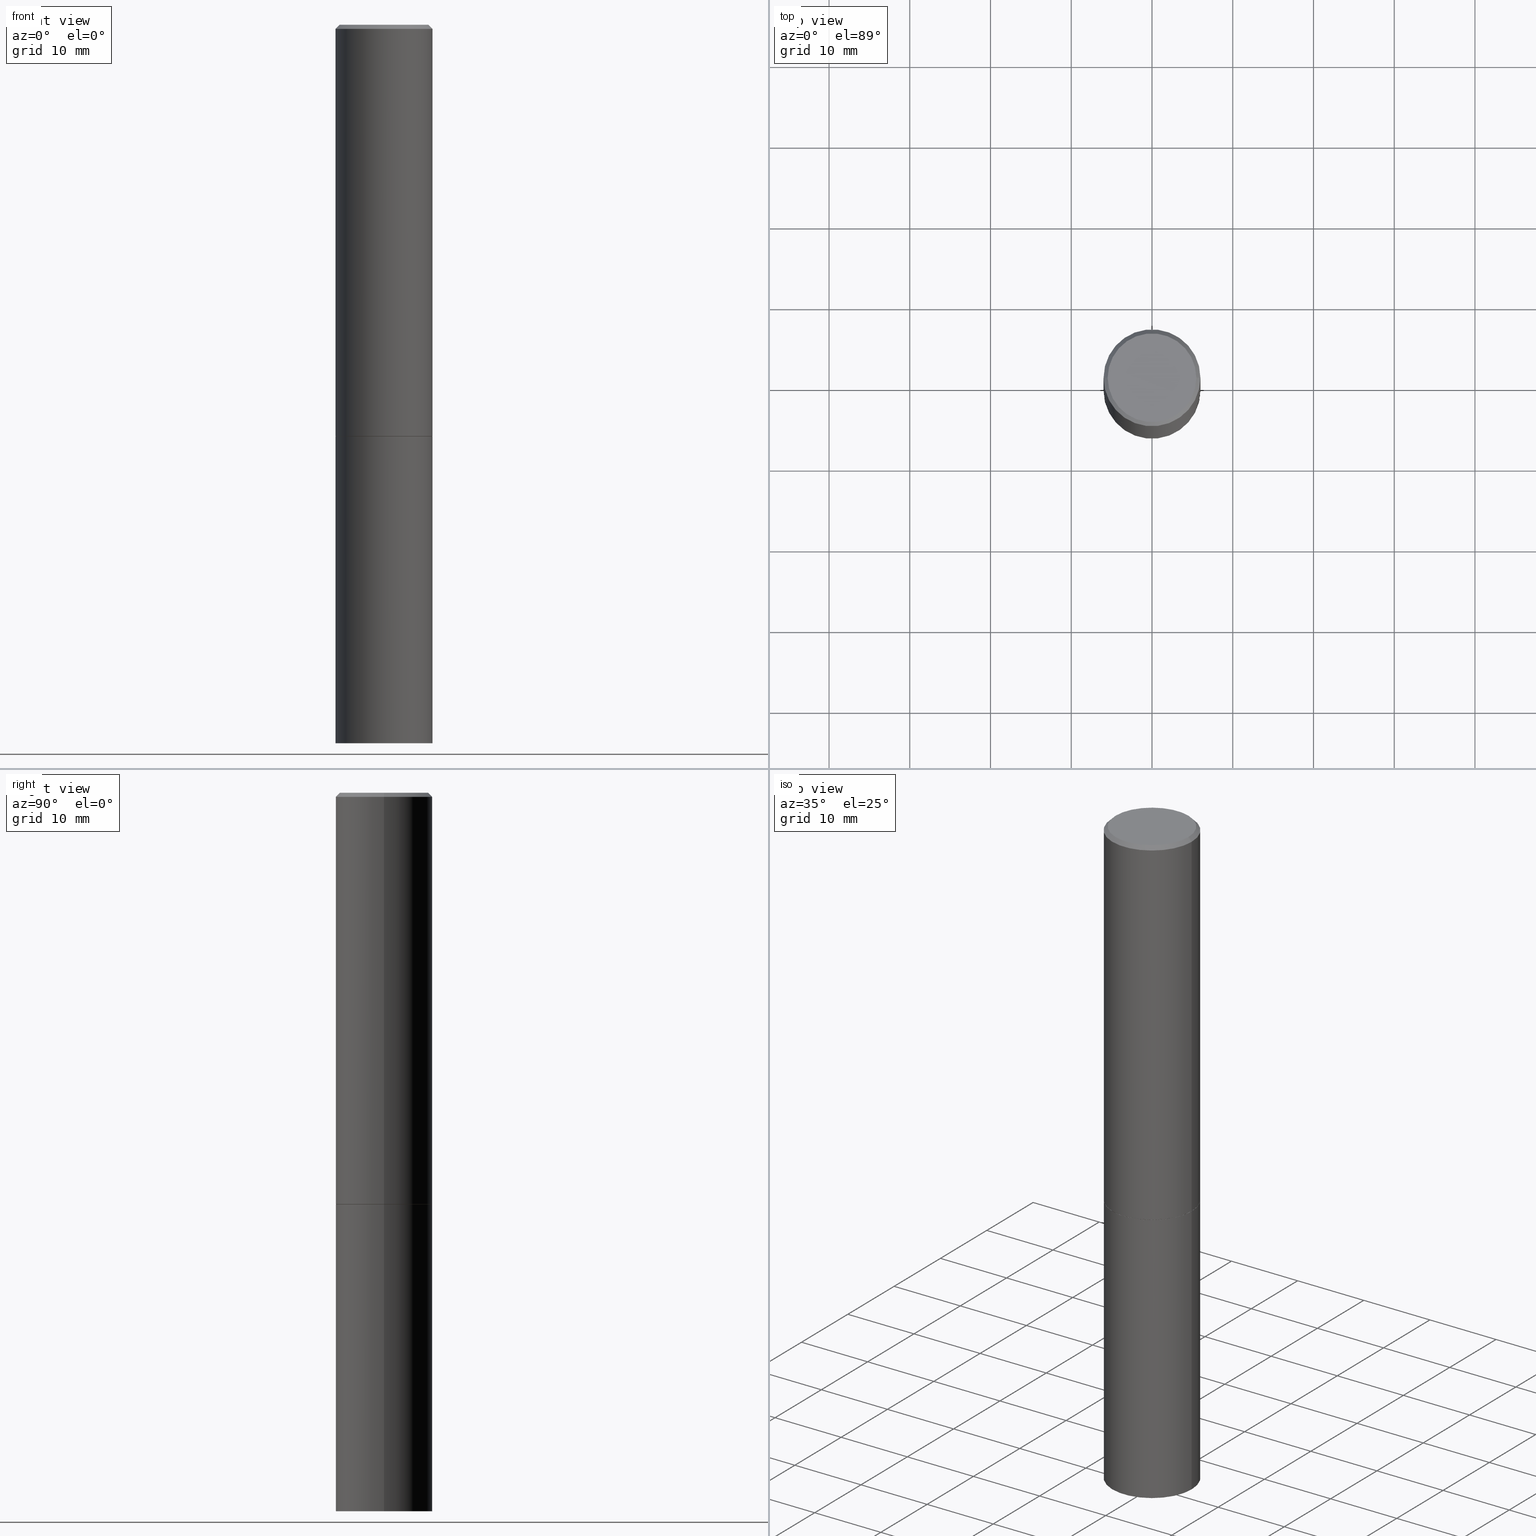
[diagram: canonical four-view strip — front | top / right | iso, engineering-drawing reading convention]
A machine part, canonical four-view strip (front | top / right | iso — engineering-drawing reading convention). The complete STEP part file that produces these views, byte-faithful:
ISO-10303-21;
HEADER;
FILE_DESCRIPTION (( 'STEP AP203' ),
    '1' );
FILE_NAME ('82997.STEP',
    '2024-02-29T21:42:59',
    ( '' ),
    ( '' ),
    'SwSTEP 2.0',
    'SolidWorks 2023',
    '' );
FILE_SCHEMA (( 'CONFIG_CONTROL_DESIGN' ));
ENDSEC;

DATA;
#1 = COORDINATED_UNIVERSAL_TIME_OFFSET ( 5, 0, .BEHIND. ) ;
#2 = CARTESIAN_POINT ( 'NONE',  ( 0.000000000000000000, 0.000000000000000000, 0.000000000000000000 ) ) ;
#3 = PERSON_AND_ORGANIZATION ( #317, #302 ) ;
#4 = CIRCLE ( 'NONE', #346, 0.2361999999999999933 ) ;
#5 = DIRECTION ( 'NONE',  ( -2.445468806185136597E-29, 3.491481338843145583E-15, 1.000000000000000000 ) ) ;
#6 = EDGE_CURVE ( 'NONE', #106, #245, #282, .T. ) ;
#7 = CIRCLE ( 'NONE', #290, 0.2361999999999997157 ) ;
#8 = APPROVAL_PERSON_ORGANIZATION ( #307, #184, #109 ) ;
#9 = DIRECTION ( 'NONE',  ( -2.445468806185136597E-29, 3.491481338843145583E-15, 1.000000000000000000 ) ) ;
#10 = DIRECTION ( 'NONE',  ( 1.000000000000000000, -6.982962677686264344E-15, 0.000000000000000000 ) ) ;
#11 = EDGE_CURVE ( 'NONE', #101, #330, #345, .T. ) ;
#12 = CARTESIAN_POINT ( 'NONE',  ( 4.890937612370280165E-31, -6.982962677686301470E-17, -0.02000000000000003164 ) ) ;
#13 = VECTOR ( 'NONE', #207, 39.37007874015748143 ) ;
#14 = DIRECTION ( 'NONE',  ( -2.445468806185136597E-29, 3.491481338843145583E-15, 1.000000000000000000 ) ) ;
#15 = CARTESIAN_POINT ( 'NONE',  ( -0.2361999999999997157, 1.579546157692631255E-15, -0.02000000000000003164 ) ) ;
#16 = DIRECTION ( 'NONE',  ( -2.445468806185136597E-29, 3.491481338843145583E-15, 1.000000000000000000 ) ) ;
#17 = ORIENTED_EDGE ( 'NONE', *, *, #146, .F. ) ;
#18 = CONICAL_SURFACE ( 'NONE', #26, 0.2351999999999999924, 0.7853981633974141952 ) ;
#19 = LOCAL_TIME ( 16, 42, 59.00000000000000000, #1 ) ;
#20 = CARTESIAN_POINT ( 'NONE',  ( 1.509716530915768746E-15, 0.2161999999999997257, -7.527240092128370190E-16 ) ) ;
#21 = ORIENTED_EDGE ( 'NONE', *, *, #316, .F. ) ;
#22 = EDGE_CURVE ( 'NONE', #101, #336, #319, .T. ) ;
#23 = ORIENTED_EDGE ( 'NONE', *, *, #156, .F. ) ;
#24 = ORIENTED_EDGE ( 'NONE', *, *, #262, .F. ) ;
#25 = COORDINATED_UNIVERSAL_TIME_OFFSET ( 5, 0, .BEHIND. ) ;
#26 = AXIS2_PLACEMENT_3D ( 'NONE', #151, #267, #98 ) ;
#27 = ORIENTED_EDGE ( 'NONE', *, *, #97, .T. ) ;
#28 = CALENDAR_DATE ( 2024, 29, 2 ) ;
#29 = DIRECTION ( 'NONE',  ( 1.000000000000000000, -6.982962677686265133E-15, 0.000000000000000000 ) ) ;
#30 = ADVANCED_FACE ( 'NONE', ( #315 ), #58, .T. ) ;
#31 = COORDINATED_UNIVERSAL_TIME_OFFSET ( 5, 0, .BEHIND. ) ;
#32 = CARTESIAN_POINT ( 'NONE',  ( 0.2351999999999999924, -8.652589053921076343E-15, -2.007800000000000029 ) ) ;
#33 = AXIS2_PLACEMENT_3D ( 'NONE', #341, #256, #10 ) ;
#34 = PRODUCT_DEFINITION ( 'UNKNOWN', '', #95, #347 ) ;
#35 = PRODUCT_DEFINITION_SHAPE ( 'NONE', 'NONE',  #34 ) ;
#36 = CARTESIAN_POINT ( 'NONE',  ( 4.907566800252331482E-29, -7.006704750790423614E-15, -2.006799999999999695 ) ) ;
#37 = CIRCLE ( 'NONE', #57, 0.2361999999999999933 ) ;
#38 = DIRECTION ( 'NONE',  ( 1.000000000000000000, -6.982962677686265922E-15, 4.876176775795935793E-29 ) ) ;
#39 = DIRECTION ( 'NONE',  ( -2.445468806185136597E-29, 3.491481338843145583E-15, 1.000000000000000000 ) ) ;
#40 = DIRECTION ( 'NONE',  ( -1.000000000000000000, 6.982962677686266711E-15, 0.000000000000000000 ) ) ;
#41 = AXIS2_PLACEMENT_3D ( 'NONE', #154, #160, #351 ) ;
#42 = DIRECTION ( 'NONE',  ( -2.445468806185136597E-29, 3.491481338843145583E-15, 1.000000000000000000 ) ) ;
#43 = CC_DESIGN_PERSON_AND_ORGANIZATION_ASSIGNMENT ( #251, #172, ( #230 ) ) ;
#44 = DIRECTION ( 'NONE',  ( 2.438088387897960049E-29, -3.491481338843145188E-15, -1.000000000000000000 ) ) ;
#45 = ORIENTED_EDGE ( 'NONE', *, *, #118, .F. ) ;
#46 = CARTESIAN_POINT ( 'NONE',  ( 0.000000000000000000, 0.000000000000000000, 0.000000000000000000 ) ) ;
#47 = EDGE_LOOP ( 'NONE', ( #155, #247, #139, #110 ) ) ;
#48 = LOCAL_TIME ( 16, 42, 59.00000000000000000, #25 ) ;
#49 = AXIS2_PLACEMENT_3D ( 'NONE', #324, #42, #125 ) ;
#50 = FACE_OUTER_BOUND ( 'NONE', #47, .T. ) ;
#51 = ORIENTED_EDGE ( 'NONE', *, *, #241, .F. ) ;
#52 = EDGE_CURVE ( 'NONE', #306, #165, #37, .T. ) ;
#53 = ORIENTED_EDGE ( 'NONE', *, *, #204, .F. ) ;
#54 = APPLICATION_PROTOCOL_DEFINITION ( 'international standard', 'config_control_design', 1994, #287 ) ;
#55 = ORIENTED_EDGE ( 'NONE', *, *, #52, .T. ) ;
#56 = APPROVAL_STATUS ( 'not_yet_approved' ) ;
#57 = AXIS2_PLACEMENT_3D ( 'NONE', #123, #236, #224 ) ;
#58 = CYLINDRICAL_SURFACE ( 'NONE', #232, 0.2361999999999998545 ) ;
#59 = PERSON_AND_ORGANIZATION ( #317, #302 ) ;
#60 = DIRECTION ( 'NONE',  ( 2.438088387897960049E-29, -3.491481338843145188E-15, -1.000000000000000000 ) ) ;
#61 = CC_DESIGN_DATE_AND_TIME_ASSIGNMENT ( #196, #365, ( #34 ) ) ;
#62 = AXIS2_PLACEMENT_3D ( 'NONE', #181, #100, #297 ) ;
#63 = DIRECTION ( 'NONE',  ( 1.000000000000000000, -6.982962677686267499E-15, 4.876217060660161841E-29 ) ) ;
#64 = CARTESIAN_POINT ( 'NONE',  ( -1.043851414335219820E-46, 1.490343170380447200E-32, 4.268512490100411279E-18 ) ) ;
#65 = VECTOR ( 'NONE', #343, 39.37007874015748854 ) ;
#66 = DATE_AND_TIME ( #263, #128 ) ;
#67 = DIRECTION ( 'NONE',  ( -2.438088387897960049E-29, 3.491481338843145188E-15, 1.000000000000000000 ) ) ;
#68 = DIRECTION ( 'NONE',  ( 1.000000000000000000, -6.982962677686266711E-15, 0.000000000000000000 ) ) ;
#69 = ADVANCED_FACE ( 'NONE', ( #85 ), #280, .T. ) ;
#70 = LINE ( 'NONE', #271, #334 ) ;
#71 = AXIS2_PLACEMENT_3D ( 'NONE', #116, #349, #179 ) ;
#72 = CYLINDRICAL_SURFACE ( 'NONE', #168, 0.2361999999999998545 ) ;
#73 = EDGE_LOOP ( 'NONE', ( #55, #217 ) ) ;
#74 = CARTESIAN_POINT ( 'NONE',  ( 0.2361999999999997157, -1.690279253850496996E-15, -0.02000000000000003164 ) ) ;
#75 = ORIENTED_EDGE ( 'NONE', *, *, #22, .T. ) ;
#76 = DIRECTION ( 'NONE',  ( -2.445468806185136597E-29, 3.491481338843145583E-15, 1.000000000000000000 ) ) ;
#77 = ORIENTED_EDGE ( 'NONE', *, *, #262, .T. ) ;
#78 = ADVANCED_FACE ( 'NONE', ( #348 ), #169, .F. ) ;
#79 = CIRCLE ( 'NONE', #310, 0.2161999999999997257 ) ;
#80 = APPROVAL_ROLE ( '' ) ;
#81 = ORIENTED_EDGE ( 'NONE', *, *, #146, .T. ) ;
#82 = ORIENTED_EDGE ( 'NONE', *, *, #11, .T. ) ;
#83 = DATE_AND_TIME ( #162, #134 ) ;
#84 = ADVANCED_FACE ( 'NONE', ( #265 ), #285, .T. ) ;
#85 = FACE_OUTER_BOUND ( 'NONE', #327, .T. ) ;
#86 = PERSON_AND_ORGANIZATION_ROLE ( 'design_supplier' ) ;
#87 = CARTESIAN_POINT ( 'NONE',  ( -0.2361999999999999933, -7.943696905785525451E-15, -2.007800000000000029 ) ) ;
#88 = PERSON_AND_ORGANIZATION ( #317, #302 ) ;
#89 = DIRECTION ( 'NONE',  ( -2.445468806185136597E-29, 3.491481338843145583E-15, 1.000000000000000000 ) ) ;
#90 = EDGE_CURVE ( 'NONE', #192, #165, #148, .T. ) ;
#91 = CONICAL_SURFACE ( 'NONE', #140, 0.2361999999999997157, 0.7853981633974472798 ) ;
#92 = EDGE_CURVE ( 'NONE', #245, #101, #313, .T. ) ;
#93 = CARTESIAN_POINT ( 'NONE',  ( 4.910012269058516525E-29, -7.010196232129267410E-15, -2.007800000000000029 ) ) ;
#94 = DIRECTION ( 'NONE',  ( 1.000000000000000000, -6.982962677686265133E-15, 0.000000000000000000 ) ) ;
#95 = PRODUCT_DEFINITION_FORMATION_WITH_SPECIFIED_SOURCE ( 'ANY', '', #230, .NOT_KNOWN. ) ;
#96 = CARTESIAN_POINT ( 'NONE',  ( 0.2361999999999999933, -8.659572016598763935E-15, -2.007800000000000029 ) ) ;
#97 = EDGE_CURVE ( 'NONE', #364, #192, #342, .T. ) ;
#98 = DIRECTION ( 'NONE',  ( 1.000000000000000000, -6.982962677686264344E-15, 0.000000000000000000 ) ) ;
#99 = CARTESIAN_POINT ( 'NONE',  ( 0.000000000000000000, 0.000000000000000000, 0.000000000000000000 ) ) ;
#100 = DIRECTION ( 'NONE',  ( 2.438088387897960049E-29, -3.491481338843145188E-15, -1.000000000000000000 ) ) ;
#101 = VERTEX_POINT ( 'NONE', #261 ) ;
#102 = LINE ( 'NONE', #268, #259 ) ;
#103 = EDGE_CURVE ( 'NONE', #185, #299, #159, .T. ) ;
#104 = ORIENTED_EDGE ( 'NONE', *, *, #316, .T. ) ;
#105 = CARTESIAN_POINT ( 'NONE',  ( 0.000000000000000000, 0.000000000000000000, 0.000000000000000000 ) ) ;
#106 = VERTEX_POINT ( 'NONE', #283 ) ;
#107 = AXIS2_PLACEMENT_3D ( 'NONE', #20, #44, #243 ) ;
#108 = ORIENTED_EDGE ( 'NONE', *, *, #121, .T. ) ;
#109 = APPROVAL_ROLE ( '' ) ;
#110 = ORIENTED_EDGE ( 'NONE', *, *, #92, .F. ) ;
#111 = PERSON_AND_ORGANIZATION ( #317, #302 ) ;
#112 = DIRECTION ( 'NONE',  ( -1.000000000000000000, 6.982962677686266711E-15, 0.000000000000000000 ) ) ;
#113 = CLOSED_SHELL ( 'NONE', ( #258, #208, #69, #355, #30, #191, #163, #308 ) ) ;
#114 = DATE_AND_TIME ( #144, #335 ) ;
#115 = AXIS2_PLACEMENT_3D ( 'NONE', #201, #60, #145 ) ;
#116 = CARTESIAN_POINT ( 'NONE',  ( 0.000000000000000000, 0.000000000000000000, 0.000000000000000000 ) ) ;
#117 = MANIFOLD_SOLID_BREP ( 'Body-Move/Copy2[2]', #113 ) ;
#118 = EDGE_CURVE ( 'NONE', #330, #167, #7, .T. ) ;
#119 = MANIFOLD_SOLID_BREP ( 'Body-Move/Copy2[1]', #231 ) ;
#120 = VECTOR ( 'NONE', #211, 39.37007874015748143 ) ;
#121 = EDGE_CURVE ( 'NONE', #364, #306, #288, .T. ) ;
#122 = COORDINATED_UNIVERSAL_TIME_OFFSET ( 5, 0, .BEHIND. ) ;
#123 = CARTESIAN_POINT ( 'NONE',  ( 4.910012269058516525E-29, -7.010196232129267410E-15, -2.007800000000000029 ) ) ;
#124 = DIRECTION ( 'NONE',  ( 1.000000000000000000, -6.982962677686266711E-15, 4.876176775795935793E-29 ) ) ;
#125 = DIRECTION ( 'NONE',  ( 1.000000000000000000, -6.982962677686269077E-15, 0.000000000000000000 ) ) ;
#126 = CC_DESIGN_PERSON_AND_ORGANIZATION_ASSIGNMENT ( #3, #360, ( #34 ) ) ;
#127 = CIRCLE ( 'NONE', #350, 0.2361999999999997157 ) ;
#128 = LOCAL_TIME ( 16, 42, 59.00000000000000000, #122 ) ;
#129 = CARTESIAN_POINT ( 'NONE',  ( -0.2361999999999998545, 1.678301941865355605E-15, -1.161852468318208056E-29 ) ) ;
#130 = CARTESIAN_POINT ( 'NONE',  ( -0.2362000000000000210, -1.859965246918283512E-15, -2.006799999999999695 ) ) ;
#131 = PLANE ( 'NONE',  #107 ) ;
#132 = EDGE_LOOP ( 'NONE', ( #161, #53 ) ) ;
#133 = CIRCLE ( 'NONE', #49, 0.2361999999999999933 ) ;
#134 = LOCAL_TIME ( 16, 42, 59.00000000000000000, #221 ) ;
#135 = DIRECTION ( 'NONE',  ( 1.000000000000000000, -6.982962677686266711E-15, 4.876176775795936353E-29 ) ) ;
#136 = ORIENTED_EDGE ( 'NONE', *, *, #92, .T. ) ;
#137 = PERSON_AND_ORGANIZATION ( #317, #302 ) ;
#138 = ORIENTED_EDGE ( 'NONE', *, *, #90, .F. ) ;
#139 = ORIENTED_EDGE ( 'NONE', *, *, #22, .F. ) ;
#140 = AXIS2_PLACEMENT_3D ( 'NONE', #358, #215, #40 ) ;
#141 =( CONVERSION_BASED_UNIT ( 'INCH', #340 ) LENGTH_UNIT ( ) NAMED_UNIT ( #164 ) );
#142 = EDGE_LOOP ( 'NONE', ( #220, #362, #104, #77 ) ) ;
#143 = CARTESIAN_POINT ( 'NONE',  ( -0.2361999999999997157, 1.579546157692631255E-15, -0.02000000000000003164 ) ) ;
#144 = CALENDAR_DATE ( 2024, 29, 2 ) ;
#145 = DIRECTION ( 'NONE',  ( -1.000000000000000000, 6.982962677686265922E-15, -4.876176775795935793E-29 ) ) ;
#146 = EDGE_CURVE ( 'NONE', #336, #101, #4, .T. ) ;
#147 = AXIS2_PLACEMENT_3D ( 'NONE', #321, #67, #38 ) ;
#148 = LINE ( 'NONE', #266, #296 ) ;
#149 = DIRECTION ( 'NONE',  ( 1.000000000000000000, -6.982962677686265133E-15, 0.000000000000000000 ) ) ;
#150 = CARTESIAN_POINT ( 'NONE',  ( 0.2361999999999999933, -1.649375784469496131E-15, 1.151752954443000088E-29 ) ) ;
#151 = CARTESIAN_POINT ( 'NONE',  ( 4.910012269058516525E-29, -7.010196232129267410E-15, -2.007800000000000029 ) ) ;
#152 = AXIS2_PLACEMENT_3D ( 'NONE', #176, #89, #94 ) ;
#153 = FACE_OUTER_BOUND ( 'NONE', #339, .T. ) ;
#154 = CARTESIAN_POINT ( 'NONE',  ( 4.910012269058516525E-29, -7.010196232129267410E-15, -2.007800000000000029 ) ) ;
#155 = ORIENTED_EDGE ( 'NONE', *, *, #156, .T. ) ;
#156 = EDGE_CURVE ( 'NONE', #245, #106, #206, .T. ) ;
#157 = DIRECTION ( 'NONE',  ( -2.445468806185136597E-29, 3.491481338843145583E-15, 1.000000000000000000 ) ) ;
#158 = EDGE_LOOP ( 'NONE', ( #27, #273, #216, #359 ) ) ;
#159 = CIRCLE ( 'NONE', #244, 0.2161999999999997257 ) ;
#160 = DIRECTION ( 'NONE',  ( -2.445468806185136597E-29, 3.491481338843145583E-15, 1.000000000000000000 ) ) ;
#161 = ORIENTED_EDGE ( 'NONE', *, *, #97, .F. ) ;
#162 = CALENDAR_DATE ( 2024, 29, 2 ) ;
#163 = ADVANCED_FACE ( 'NONE', ( #292 ), #171, .F. ) ;
#164 = DIMENSIONAL_EXPONENTS ( 1.000000000000000000, 0.000000000000000000, 0.000000000000000000, 0.000000000000000000, 0.000000000000000000, 0.000000000000000000, 0.000000000000000000 ) ;
#165 = VERTEX_POINT ( 'NONE', #87 ) ;
#166 =( LENGTH_UNIT ( ) NAMED_UNIT ( * ) SI_UNIT ( $, .METRE. ) );
#167 = VERTEX_POINT ( 'NONE', #143 ) ;
#168 = AXIS2_PLACEMENT_3D ( 'NONE', #99, #331, #188 ) ;
#169 = PLANE ( 'NONE',  #115 ) ;
#170 = DATE_AND_TIME ( #28, #48 ) ;
#171 = PLANE ( 'NONE',  #147 ) ;
#172 = PERSON_AND_ORGANIZATION_ROLE ( 'design_owner' ) ;
#173 = AXIS2_PLACEMENT_3D ( 'NONE', #242, #16, #354 ) ;
#174 = SECURITY_CLASSIFICATION ( '', '', #199 ) ;
#175 = CC_DESIGN_PERSON_AND_ORGANIZATION_ASSIGNMENT ( #59, #284, ( #174 ) ) ;
#176 = CARTESIAN_POINT ( 'NONE',  ( 8.568678149992099474E-29, -1.223380146317249786E-14, -3.503899999999999793 ) ) ;
#177 = DIRECTION ( 'NONE',  ( 1.000000000000000000, -6.982962677686264344E-15, 0.000000000000000000 ) ) ;
#178 = CC_DESIGN_APPROVAL ( #322, ( #34 ) ) ;
#179 = DIRECTION ( 'NONE',  ( 1.000000000000000000, -6.982962677686266711E-15, 4.876176775795936353E-29 ) ) ;
#180 = EDGE_CURVE ( 'NONE', #165, #306, #133, .T. ) ;
#181 = CARTESIAN_POINT ( 'NONE',  ( 1.649375784469581525E-15, 0.2361999999999877808, -3.503900000000000681 ) ) ;
#182 = DIRECTION ( 'NONE',  ( -0.7071067811865467956, 2.468850131082249172E-15, -0.7071067811865482389 ) ) ;
#183 = CARTESIAN_POINT ( 'NONE',  ( 4.890937612370280165E-31, -6.982962677686301470E-17, -0.02000000000000003164 ) ) ;
#184 = APPROVAL ( #344, 'UNSPECIFIED' ) ;
#185 = VERTEX_POINT ( 'NONE', #269 ) ;
#186 = FACE_OUTER_BOUND ( 'NONE', #158, .T. ) ;
#187 = ORIENTED_EDGE ( 'NONE', *, *, #6, .F. ) ;
#188 = DIRECTION ( 'NONE',  ( 1.000000000000000000, -6.982962677686266711E-15, 4.876176775795935793E-29 ) ) ;
#189 = EDGE_LOOP ( 'NONE', ( #250, #281 ) ) ;
#190 = AXIS2_PLACEMENT_3D ( 'NONE', #311, #5, #149 ) ;
#191 = ADVANCED_FACE ( 'NONE', ( #153 ), #18, .T. ) ;
#192 = VERTEX_POINT ( 'NONE', #209 ) ;
#193 = APPLICATION_CONTEXT ( 'configuration controlled 3d designs of mechanical parts and assemblies' ) ;
#194 = MECHANICAL_CONTEXT ( 'NONE', #287, 'mechanical' ) ;
#195 = ORIENTED_EDGE ( 'NONE', *, *, #6, .T. ) ;
#196 = DATE_AND_TIME ( #338, #19 ) ;
#197 = DIRECTION ( 'NONE',  ( -2.445468806185136597E-29, 3.491481338843145583E-15, 1.000000000000000000 ) ) ;
#198 = CC_DESIGN_SECURITY_CLASSIFICATION ( #174, ( #95 ) ) ;
#199 = SECURITY_CLASSIFICATION_LEVEL ( 'unclassified' ) ;
#200 = EDGE_CURVE ( 'NONE', #336, #167, #213, .T. ) ;
#201 = CARTESIAN_POINT ( 'NONE',  ( 1.649375784469545040E-15, 0.2361999999999929989, -2.007800000000000473 ) ) ;
#202 = PERSON_AND_ORGANIZATION ( #317, #302 ) ;
#203 = DIRECTION ( 'NONE',  ( 1.000000000000000000, -6.982962677686266711E-15, 0.000000000000000000 ) ) ;
#204 = EDGE_CURVE ( 'NONE', #192, #364, #225, .T. ) ;
#205 = DIRECTION ( 'NONE',  ( -2.445468806185136597E-29, 3.491481338843145583E-15, 1.000000000000000000 ) ) ;
#206 = CIRCLE ( 'NONE', #212, 0.2351999999999999924 ) ;
#207 = DIRECTION ( 'NONE',  ( -2.445468806185136877E-29, 3.491481338843145188E-15, 1.000000000000000000 ) ) ;
#208 = ADVANCED_FACE ( 'NONE', ( #246 ), #72, .T. ) ;
#209 = CARTESIAN_POINT ( 'NONE',  ( -0.2361999999999999933, -7.943696905785525451E-15, -3.503899999999999793 ) ) ;
#210 = FACE_OUTER_BOUND ( 'NONE', #132, .T. ) ;
#211 = DIRECTION ( 'NONE',  ( -2.445468806185136877E-29, 3.491481338843145188E-15, 1.000000000000000000 ) ) ;
#212 = AXIS2_PLACEMENT_3D ( 'NONE', #93, #205, #177 ) ;
#213 = LINE ( 'NONE', #129, #120 ) ;
#214 = ORIENTED_EDGE ( 'NONE', *, *, #11, .F. ) ;
#215 = DIRECTION ( 'NONE',  ( 2.445468806185136597E-29, -3.491481338843145583E-15, -1.000000000000000000 ) ) ;
#216 = ORIENTED_EDGE ( 'NONE', *, *, #52, .F. ) ;
#217 = ORIENTED_EDGE ( 'NONE', *, *, #180, .T. ) ;
#218 = VECTOR ( 'NONE', #182, 39.37007874015748143 ) ;
#219 = APPROVAL_ROLE ( '' ) ;
#220 = ORIENTED_EDGE ( 'NONE', *, *, #279, .F. ) ;
#221 = COORDINATED_UNIVERSAL_TIME_OFFSET ( 5, 0, .BEHIND. ) ;
#222 = CARTESIAN_POINT ( 'NONE',  ( 4.890937612370280165E-31, -6.982962677686301470E-17, -0.02000000000000003164 ) ) ;
#223 =( NAMED_UNIT ( * ) SI_UNIT ( $, .STERADIAN. ) SOLID_ANGLE_UNIT ( ) );
#224 = DIRECTION ( 'NONE',  ( 1.000000000000000000, -6.982962677686269077E-15, 0.000000000000000000 ) ) ;
#225 = CIRCLE ( 'NONE', #173, 0.2361999999999999933 ) ;
#226 = DATE_TIME_ROLE ( 'classification_date' ) ;
#227 = DIRECTION ( 'NONE',  ( -2.445468806185136877E-29, 3.491481338843145188E-15, 1.000000000000000000 ) ) ;
#228 = PRODUCT_RELATED_PRODUCT_CATEGORY ( 'detail', '', ( #230 ) ) ;
#229 = APPROVAL_DATE_TIME ( #66, #294 ) ;
#230 = PRODUCT ( '82997', '82997', '', ( #194 ) ) ;
#231 = CLOSED_SHELL ( 'NONE', ( #352, #329, #78, #84 ) ) ;
#232 = AXIS2_PLACEMENT_3D ( 'NONE', #2, #9, #124 ) ;
#233 = SHAPE_DEFINITION_REPRESENTATION ( #35, #235 ) ;
#234 = CARTESIAN_POINT ( 'NONE',  ( 0.2361999999999998545, -1.649375784469495145E-15, 1.151752954442999387E-29 ) ) ;
#235 = ADVANCED_BREP_SHAPE_REPRESENTATION ( '82997', ( #119, #117, #239 ), #237 ) ;
#236 = DIRECTION ( 'NONE',  ( -2.445468806185136597E-29, 3.491481338843145583E-15, 1.000000000000000000 ) ) ;
#237 =( GEOMETRIC_REPRESENTATION_CONTEXT ( 3 ) GLOBAL_UNCERTAINTY_ASSIGNED_CONTEXT ( ( #264 ) ) GLOBAL_UNIT_ASSIGNED_CONTEXT ( ( #141, #255, #223 ) ) REPRESENTATION_CONTEXT ( 'NONE', 'WORKASPACE' ) );
#238 = DIRECTION ( 'NONE',  ( -0.7071067811865232589, 7.493145998870265808E-15, 0.7071067811865715536 ) ) ;
#239 = AXIS2_PLACEMENT_3D ( 'NONE', #105, #278, #312 ) ;
#240 = CARTESIAN_POINT ( 'NONE',  ( 0.2161999999999997257, -1.586759460484350016E-15, 4.268512490111238857E-18 ) ) ;
#241 = EDGE_CURVE ( 'NONE', #106, #336, #102, .T. ) ;
#242 = CARTESIAN_POINT ( 'NONE',  ( 8.568678149992099474E-29, -1.223380146317249786E-14, -3.503899999999999793 ) ) ;
#243 = DIRECTION ( 'NONE',  ( -1.000000000000000000, 6.982962677686265922E-15, -4.876176775795935793E-29 ) ) ;
#244 = AXIS2_PLACEMENT_3D ( 'NONE', #64, #293, #63 ) ;
#245 = VERTEX_POINT ( 'NONE', #328 ) ;
#246 = FACE_OUTER_BOUND ( 'NONE', #366, .T. ) ;
#247 = ORIENTED_EDGE ( 'NONE', *, *, #241, .T. ) ;
#248 = EDGE_CURVE ( 'NONE', #299, #185, #79, .T. ) ;
#249 = ORIENTED_EDGE ( 'NONE', *, *, #200, .F. ) ;
#250 = ORIENTED_EDGE ( 'NONE', *, *, #103, .T. ) ;
#251 = PERSON_AND_ORGANIZATION ( #317, #302 ) ;
#252 = ORIENTED_EDGE ( 'NONE', *, *, #118, .T. ) ;
#253 = APPROVAL_DATE_TIME ( #170, #322 ) ;
#254 = DIRECTION ( 'NONE',  ( -2.445468806185136877E-29, 3.491481338843145188E-15, 1.000000000000000000 ) ) ;
#255 =( NAMED_UNIT ( * ) PLANE_ANGLE_UNIT ( ) SI_UNIT ( $, .RADIAN. ) );
#256 = DIRECTION ( 'NONE',  ( -2.445468806185136597E-29, 3.491481338843145583E-15, 1.000000000000000000 ) ) ;
#257 = CC_DESIGN_APPROVAL ( #184, ( #95 ) ) ;
#258 = ADVANCED_FACE ( 'NONE', ( #50 ), #286, .T. ) ;
#259 = VECTOR ( 'NONE', #238, 39.37007874015748854 ) ;
#260 = CC_DESIGN_APPROVAL ( #294, ( #174 ) ) ;
#261 = CARTESIAN_POINT ( 'NONE',  ( 0.2361999999999999933, -8.656080535259919350E-15, -2.006799999999999695 ) ) ;
#262 = EDGE_CURVE ( 'NONE', #167, #330, #127, .T. ) ;
#263 = CALENDAR_DATE ( 2024, 29, 2 ) ;
#264 = UNCERTAINTY_MEASURE_WITH_UNIT (LENGTH_MEASURE( 1.000000000000000082E-05 ), #141, 'distance_accuracy_value', 'NONE');
#265 = FACE_OUTER_BOUND ( 'NONE', #270, .T. ) ;
#266 = CARTESIAN_POINT ( 'NONE',  ( -0.2361999999999999933, 1.678301941865356591E-15, -1.161852468318208757E-29 ) ) ;
#267 = DIRECTION ( 'NONE',  ( -2.445468806185136597E-29, 3.491481338843145583E-15, 1.000000000000000000 ) ) ;
#268 = CARTESIAN_POINT ( 'NONE',  ( -0.2351999999999999924, -5.338999717621511235E-15, -2.007800000000000029 ) ) ;
#269 = CARTESIAN_POINT ( 'NONE',  ( -0.2161999999999997257, 1.544631344304200197E-15, 4.268512490089730842E-18 ) ) ;
#270 = EDGE_LOOP ( 'NONE', ( #138, #301, #108, #304 ) ) ;
#271 = CARTESIAN_POINT ( 'NONE',  ( 0.2361999999999997157, -1.690279253850496996E-15, -0.02000000000000003164 ) ) ;
#272 = VECTOR ( 'NONE', #254, 39.37007874015748143 ) ;
#273 = ORIENTED_EDGE ( 'NONE', *, *, #90, .T. ) ;
#274 = CARTESIAN_POINT ( 'NONE',  ( -1.043851414335219820E-46, 1.490343170380447200E-32, 4.268512490100411279E-18 ) ) ;
#275 = ORIENTED_EDGE ( 'NONE', *, *, #279, .T. ) ;
#276 = PERSON_AND_ORGANIZATION_ROLE ( 'creator' ) ;
#277 = ORIENTED_EDGE ( 'NONE', *, *, #248, .F. ) ;
#278 = DIRECTION ( 'NONE',  ( 0.000000000000000000, 0.000000000000000000, 1.000000000000000000 ) ) ;
#279 = EDGE_CURVE ( 'NONE', #299, #330, #70, .T. ) ;
#280 = CONICAL_SURFACE ( 'NONE', #325, 0.2361999999999997157, 0.7853981633974472798 ) ;
#281 = ORIENTED_EDGE ( 'NONE', *, *, #248, .T. ) ;
#282 = CIRCLE ( 'NONE', #33, 0.2351999999999999924 ) ;
#283 = CARTESIAN_POINT ( 'NONE',  ( -0.2351999999999999924, -5.333701263273288833E-15, -2.007800000000000029 ) ) ;
#284 = PERSON_AND_ORGANIZATION_ROLE ( 'classification_officer' ) ;
#285 = CYLINDRICAL_SURFACE ( 'NONE', #71, 0.2361999999999999933 ) ;
#286 = CONICAL_SURFACE ( 'NONE', #41, 0.2351999999999999924, 0.7853981633974141952 ) ;
#287 = APPLICATION_CONTEXT ( 'configuration controlled 3d designs of mechanical parts and assemblies' ) ;
#288 = LINE ( 'NONE', #150, #13 ) ;
#289 = CC_DESIGN_DATE_AND_TIME_ASSIGNMENT ( #114, #226, ( #174 ) ) ;
#290 = AXIS2_PLACEMENT_3D ( 'NONE', #12, #197, #203 ) ;
#291 = APPROVAL_PERSON_ORGANIZATION ( #202, #294, #80 ) ;
#292 = FACE_OUTER_BOUND ( 'NONE', #357, .T. ) ;
#293 = DIRECTION ( 'NONE',  ( -2.445468806185136597E-29, 3.491481338843145583E-15, 1.000000000000000000 ) ) ;
#294 = APPROVAL ( #314, 'UNSPECIFIED' ) ;
#295 = FACE_OUTER_BOUND ( 'NONE', #142, .T. ) ;
#296 = VECTOR ( 'NONE', #227, 39.37007874015748143 ) ;
#297 = DIRECTION ( 'NONE',  ( -1.000000000000000000, 6.982962677686265922E-15, -4.876176775795935793E-29 ) ) ;
#298 = DIRECTION ( 'NONE',  ( 0.7071067811865467956, -7.319954787623254468E-15, -0.7071067811865482389 ) ) ;
#299 = VERTEX_POINT ( 'NONE', #240 ) ;
#300 = CYLINDRICAL_SURFACE ( 'NONE', #363, 0.2361999999999999933 ) ;
#301 = ORIENTED_EDGE ( 'NONE', *, *, #204, .T. ) ;
#302 = ORGANIZATION ( 'UNSPECIFIED', 'UNSPECIFIED', '' ) ;
#303 = CARTESIAN_POINT ( 'NONE',  ( 0.2361999999999999933, -1.388317724764199281E-14, -3.503899999999999793 ) ) ;
#304 = ORIENTED_EDGE ( 'NONE', *, *, #180, .F. ) ;
#305 = APPLICATION_PROTOCOL_DEFINITION ( 'international standard', 'config_control_design', 1994, #193 ) ;
#306 = VERTEX_POINT ( 'NONE', #96 ) ;
#307 = PERSON_AND_ORGANIZATION ( #317, #302 ) ;
#308 = ADVANCED_FACE ( 'NONE', ( #323 ), #131, .F. ) ;
#309 = EDGE_LOOP ( 'NONE', ( #249, #81, #82, #24 ) ) ;
#310 = AXIS2_PLACEMENT_3D ( 'NONE', #274, #14, #326 ) ;
#311 = CARTESIAN_POINT ( 'NONE',  ( 4.907566800252331482E-29, -7.006704750790423614E-15, -2.006799999999999695 ) ) ;
#312 = DIRECTION ( 'NONE',  ( 1.000000000000000000, 0.000000000000000000, 0.000000000000000000 ) ) ;
#313 = LINE ( 'NONE', #32, #65 ) ;
#314 = APPROVAL_STATUS ( 'not_yet_approved' ) ;
#315 = FACE_OUTER_BOUND ( 'NONE', #309, .T. ) ;
#316 = EDGE_CURVE ( 'NONE', #185, #167, #356, .T. ) ;
#317 = PERSON ( 'UNSPECIFIED', 'UNSPECIFIED', 'UNSPECIFIED', ('UNSPECIFIED'), ('UNSPECIFIED'), ('UNSPECIFIED') ) ;
#318 = DIRECTION ( 'NONE',  ( 2.445468806185136597E-29, -3.491481338843145583E-15, -1.000000000000000000 ) ) ;
#319 = CIRCLE ( 'NONE', #190, 0.2361999999999999933 ) ;
#320 = APPROVAL_PERSON_ORGANIZATION ( #137, #322, #219 ) ;
#321 = CARTESIAN_POINT ( 'NONE',  ( 4.910012269058516525E-29, -7.010196232129267410E-15, -2.007800000000000029 ) ) ;
#322 = APPROVAL ( #56, 'UNSPECIFIED' ) ;
#323 = FACE_OUTER_BOUND ( 'NONE', #189, .T. ) ;
#324 = CARTESIAN_POINT ( 'NONE',  ( 4.910012269058516525E-29, -7.010196232129267410E-15, -2.007800000000000029 ) ) ;
#325 = AXIS2_PLACEMENT_3D ( 'NONE', #222, #318, #112 ) ;
#326 = DIRECTION ( 'NONE',  ( 1.000000000000000000, -6.982962677686267499E-15, 4.876217060660161841E-29 ) ) ;
#327 = EDGE_LOOP ( 'NONE', ( #277, #275, #252, #21 ) ) ;
#328 = CARTESIAN_POINT ( 'NONE',  ( 0.2351999999999999924, -8.652589053921076343E-15, -2.007800000000000029 ) ) ;
#329 = ADVANCED_FACE ( 'NONE', ( #210 ), #353, .T. ) ;
#330 = VERTEX_POINT ( 'NONE', #74 ) ;
#331 = DIRECTION ( 'NONE',  ( -2.445468806185136597E-29, 3.491481338843145583E-15, 1.000000000000000000 ) ) ;
#332 = ORIENTED_EDGE ( 'NONE', *, *, #200, .T. ) ;
#333 = APPROVAL_DATE_TIME ( #83, #184 ) ;
#334 = VECTOR ( 'NONE', #298, 39.37007874015748143 ) ;
#335 = LOCAL_TIME ( 16, 42, 59.00000000000000000, #31 ) ;
#336 = VERTEX_POINT ( 'NONE', #130 ) ;
#337 = CC_DESIGN_PERSON_AND_ORGANIZATION_ASSIGNMENT ( #88, #276, ( #95 ) ) ;
#338 = CALENDAR_DATE ( 2024, 29, 2 ) ;
#339 = EDGE_LOOP ( 'NONE', ( #51, #195, #136, #17 ) ) ;
#340 = LENGTH_MEASURE_WITH_UNIT ( LENGTH_MEASURE( 0.02539999999999999897 ), #166 );
#341 = CARTESIAN_POINT ( 'NONE',  ( 4.910012269058516525E-29, -7.010196232129267410E-15, -2.007800000000000029 ) ) ;
#342 = CIRCLE ( 'NONE', #152, 0.2361999999999999933 ) ;
#343 = DIRECTION ( 'NONE',  ( 0.7071067811865232589, -2.468850131082003836E-15, 0.7071067811865715536 ) ) ;
#344 = APPROVAL_STATUS ( 'not_yet_approved' ) ;
#345 = LINE ( 'NONE', #234, #272 ) ;
#346 = AXIS2_PLACEMENT_3D ( 'NONE', #36, #39, #29 ) ;
#347 = DESIGN_CONTEXT ( 'detailed design', #193, 'design' ) ;
#348 = FACE_OUTER_BOUND ( 'NONE', #73, .T. ) ;
#349 = DIRECTION ( 'NONE',  ( -2.445468806185136597E-29, 3.491481338843145583E-15, 1.000000000000000000 ) ) ;
#350 = AXIS2_PLACEMENT_3D ( 'NONE', #183, #157, #68 ) ;
#351 = DIRECTION ( 'NONE',  ( 1.000000000000000000, -6.982962677686264344E-15, 0.000000000000000000 ) ) ;
#352 = ADVANCED_FACE ( 'NONE', ( #186 ), #300, .T. ) ;
#353 = PLANE ( 'NONE',  #62 ) ;
#354 = DIRECTION ( 'NONE',  ( 1.000000000000000000, -6.982962677686265133E-15, 0.000000000000000000 ) ) ;
#355 = ADVANCED_FACE ( 'NONE', ( #295 ), #91, .T. ) ;
#356 = LINE ( 'NONE', #15, #218 ) ;
#357 = EDGE_LOOP ( 'NONE', ( #23, #187 ) ) ;
#358 = CARTESIAN_POINT ( 'NONE',  ( 4.890937612370280165E-31, -6.982962677686301470E-17, -0.02000000000000003164 ) ) ;
#359 = ORIENTED_EDGE ( 'NONE', *, *, #121, .F. ) ;
#360 = PERSON_AND_ORGANIZATION_ROLE ( 'creator' ) ;
#361 = CC_DESIGN_PERSON_AND_ORGANIZATION_ASSIGNMENT ( #111, #86, ( #95 ) ) ;
#362 = ORIENTED_EDGE ( 'NONE', *, *, #103, .F. ) ;
#363 = AXIS2_PLACEMENT_3D ( 'NONE', #46, #76, #135 ) ;
#364 = VERTEX_POINT ( 'NONE', #303 ) ;
#365 = DATE_TIME_ROLE ( 'creation_date' ) ;
#366 = EDGE_LOOP ( 'NONE', ( #75, #332, #45, #214 ) ) ;
ENDSEC;
END-ISO-10303-21;
